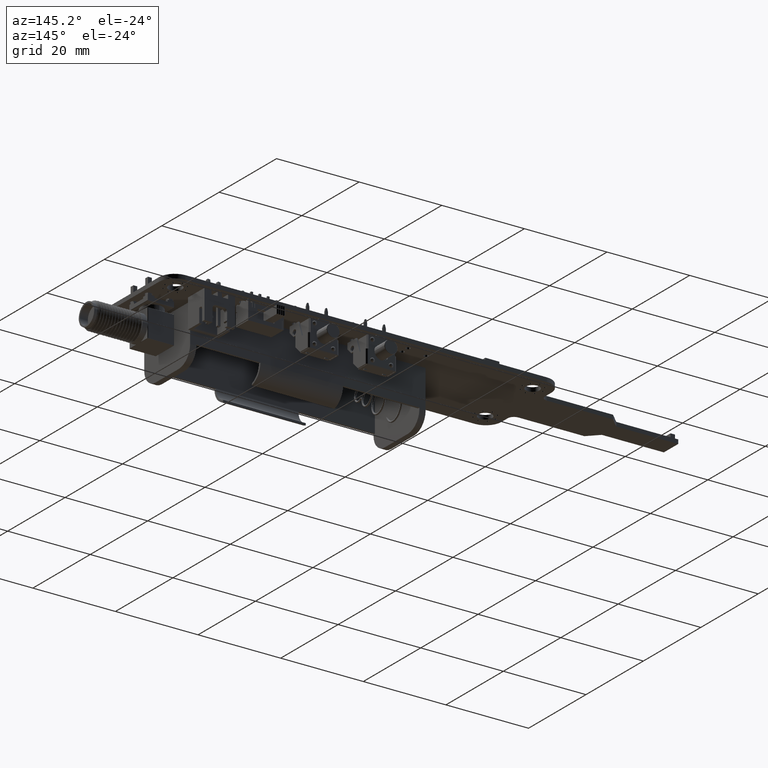
[diagram: clean part render]
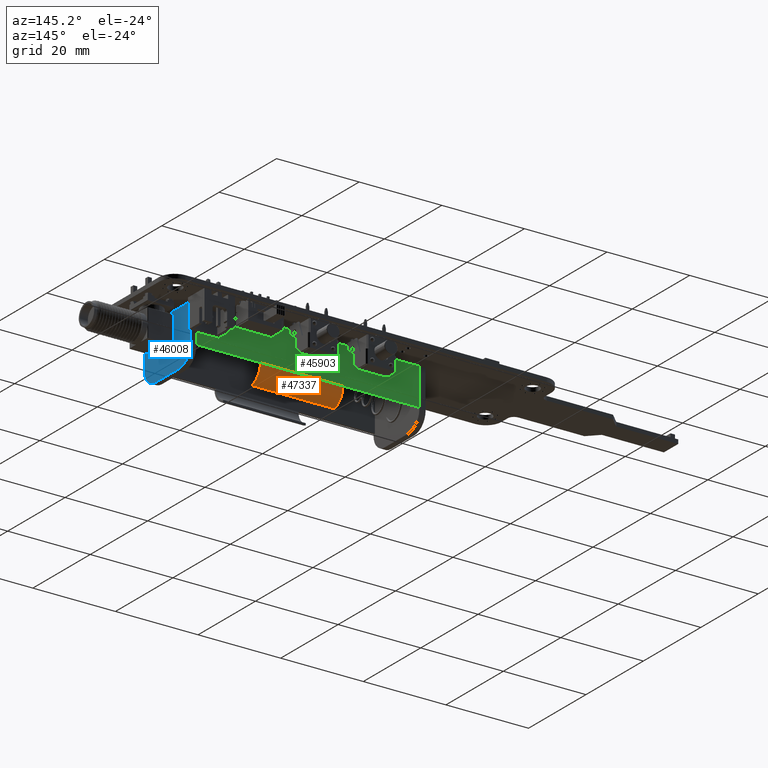
[diagram: same view with three faces highlighted in distinct colors, each labeled with its STEP entity id]
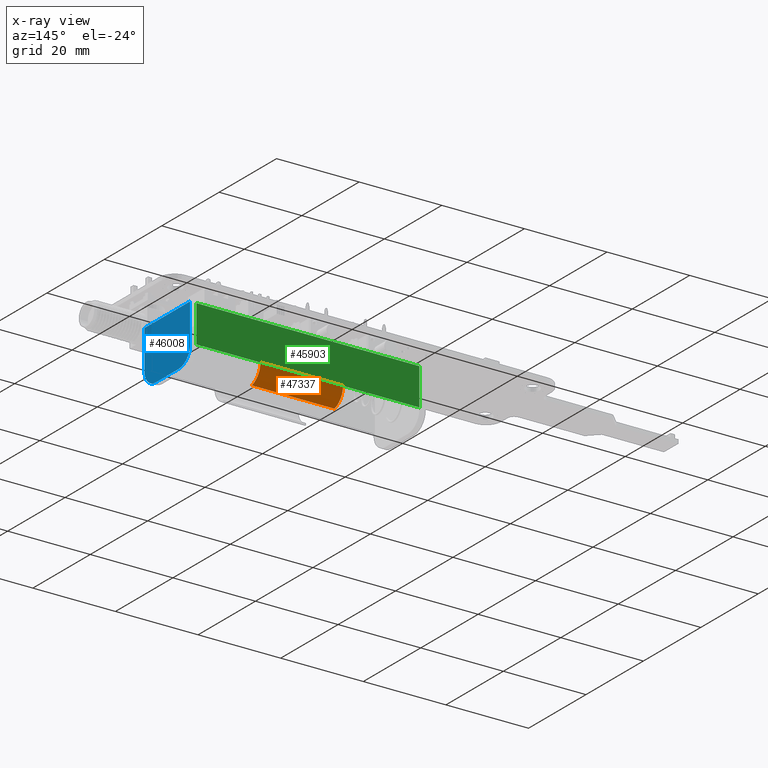
[diagram: x-ray of the same camera — body ghosted, the three highlighted faces saturated]
A machine part, auxiliary view with three faces highlighted in distinct colors.
The next image is the same camera in x-ray (body ghosted, the three faces saturated) — at least one of them is partly hidden behind the body in this view.
Their STEP definitions:

[orange] entity #47337 — the highlighted cylindrical surface (edge-blend (fillet) strip) has radius 4.0073 mm, axis along (-1, -0, 0).
#45004 = PLANE('',#45005);
#45005 = AXIS2_PLACEMENT_3D('',#45006,#45007,#45008);
#45006 = CARTESIAN_POINT('',(-5.,12.88057,40.));
#45007 = DIRECTION('',(0.,0.,1.));
#45008 = DIRECTION('',(1.,0.,-0.));
#45797 = VERTEX_POINT('',#45798);
#45798 = CARTESIAN_POINT('',(-5.,12.88057,40.));
#45814 = PLANE('',#45815);
#45815 = AXIS2_PLACEMENT_3D('',#45816,#45817,#45818);
#45816 = CARTESIAN_POINT('',(-5.,12.88057,20.));
#45817 = DIRECTION('',(1.,0.,0.));
#45818 = DIRECTION('',(0.,-1.,0.));
#45826 = EDGE_CURVE('',#45797,#45827,#45829,.T.);
#45827 = VERTEX_POINT('',#45828);
#45828 = CARTESIAN_POINT('',(-8.00734619479,9.,40.));
#45829 = SURFACE_CURVE('',#45830,(#45835,#45842),.PCURVE_S1.);
#45830 = CIRCLE('',#45831,4.00734619479);
#45831 = AXIS2_PLACEMENT_3D('',#45832,#45833,#45834);
#45832 = CARTESIAN_POINT('',(-4.,9.,40.));
#45833 = DIRECTION('',(0.,0.,1.));
#45834 = DIRECTION('',(1.,0.,-0.));
#45835 = PCURVE('',#45004,#45836);
#45836 = DEFINITIONAL_REPRESENTATION('',(#45837),#45841);
#45837 = CIRCLE('',#45838,4.00734619479);
#45838 = AXIS2_PLACEMENT_2D('',#45839,#45840);
#45839 = CARTESIAN_POINT('',(1.,-3.88057));
#45840 = DIRECTION('',(1.,0.));
#45841 = ( GEOMETRIC_REPRESENTATION_CONTEXT(2) 
PARAMETRIC_REPRESENTATION_CONTEXT() REPRESENTATION_CONTEXT('2D SPACE',''
  ) );
#45842 = PCURVE('',#45843,#45848);
#45843 = CYLINDRICAL_SURFACE('',#45844,4.00734619479);
#45844 = AXIS2_PLACEMENT_3D('',#45845,#45846,#45847);
#45845 = CARTESIAN_POINT('',(-4.,9.,20.));
#45846 = DIRECTION('',(-0.,-0.,-1.));
#45847 = DIRECTION('',(1.,0.,0.));
#45848 = DEFINITIONAL_REPRESENTATION('',(#45849),#45853);
#45849 = LINE('',#45850,#45851);
#45850 = CARTESIAN_POINT('',(6.28318530718,-20.));
#45851 = VECTOR('',#45852,1.);
#45852 = DIRECTION('',(-1.,0.));
#45853 = ( GEOMETRIC_REPRESENTATION_CONTEXT(2) 
PARAMETRIC_REPRESENTATION_CONTEXT() REPRESENTATION_CONTEXT('2D SPACE',''
  ) );
#45869 = PLANE('',#45870);
#45870 = AXIS2_PLACEMENT_3D('',#45871,#45872,#45873);
#45871 = CARTESIAN_POINT('',(-7.5,9.,20.));
#45872 = DIRECTION('',(0.,-1.,0.));
#45873 = DIRECTION('',(-1.,0.,0.));
#46104 = PLANE('',#46105);
#46105 = AXIS2_PLACEMENT_3D('',#46106,#46107,#46108);
#46106 = CARTESIAN_POINT('',(-5.,12.88057,20.));
#46107 = DIRECTION('',(0.,0.,1.));
#46108 = DIRECTION('',(1.,0.,-0.));
#47292 = EDGE_CURVE('',#47293,#45797,#47295,.T.);
#47293 = VERTEX_POINT('',#47294);
#47294 = CARTESIAN_POINT('',(-5.,12.88057,20.));
#47295 = SURFACE_CURVE('',#47296,(#47300,#47307),.PCURVE_S1.);
#47296 = LINE('',#47297,#47298);
#47297 = CARTESIAN_POINT('',(-5.,12.88057,20.));
#47298 = VECTOR('',#47299,1.);
#47299 = DIRECTION('',(0.,0.,1.));
#47300 = PCURVE('',#45814,#47301);
#47301 = DEFINITIONAL_REPRESENTATION('',(#47302),#47306);
#47302 = LINE('',#47303,#47304);
#47303 = CARTESIAN_POINT('',(0.,0.));
#47304 = VECTOR('',#47305,1.);
#47305 = DIRECTION('',(0.,-1.));
#47306 = ( GEOMETRIC_REPRESENTATION_CONTEXT(2) 
PARAMETRIC_REPRESENTATION_CONTEXT() REPRESENTATION_CONTEXT('2D SPACE',''
  ) );
#47307 = PCURVE('',#45843,#47308);
#47308 = DEFINITIONAL_REPRESENTATION('',(#47309),#47313);
#47309 = LINE('',#47310,#47311);
#47310 = CARTESIAN_POINT('',(4.46018202189,0.));
#47311 = VECTOR('',#47312,1.);
#47312 = DIRECTION('',(-0.,-1.));
#47313 = ( GEOMETRIC_REPRESENTATION_CONTEXT(2) 
PARAMETRIC_REPRESENTATION_CONTEXT() REPRESENTATION_CONTEXT('2D SPACE',''
  ) );
#47337 = ADVANCED_FACE('',(#47338),#45843,.T.);
#47338 = FACE_BOUND('',#47339,.T.);
#47339 = EDGE_LOOP('',(#47340,#47364,#47385,#47386));
#47340 = ORIENTED_EDGE('',*,*,#47341,.T.);
#47341 = EDGE_CURVE('',#47293,#47342,#47344,.T.);
#47342 = VERTEX_POINT('',#47343);
#47343 = CARTESIAN_POINT('',(-8.00734619479,9.,20.));
#47344 = SURFACE_CURVE('',#47345,(#47350,#47357),.PCURVE_S1.);
#47345 = CIRCLE('',#47346,4.00734619479);
#47346 = AXIS2_PLACEMENT_3D('',#47347,#47348,#47349);
#47347 = CARTESIAN_POINT('',(-4.,9.,20.));
#47348 = DIRECTION('',(0.,0.,1.));
#47349 = DIRECTION('',(1.,0.,-0.));
#47350 = PCURVE('',#45843,#47351);
#47351 = DEFINITIONAL_REPRESENTATION('',(#47352),#47356);
#47352 = LINE('',#47353,#47354);
#47353 = CARTESIAN_POINT('',(6.28318530718,0.));
#47354 = VECTOR('',#47355,1.);
#47355 = DIRECTION('',(-1.,0.));
#47356 = ( GEOMETRIC_REPRESENTATION_CONTEXT(2) 
PARAMETRIC_REPRESENTATION_CONTEXT() REPRESENTATION_CONTEXT('2D SPACE',''
  ) );
#47357 = PCURVE('',#46104,#47358);
#47358 = DEFINITIONAL_REPRESENTATION('',(#47359),#47363);
#47359 = CIRCLE('',#47360,4.00734619479);
#47360 = AXIS2_PLACEMENT_2D('',#47361,#47362);
#47361 = CARTESIAN_POINT('',(1.,-3.88057));
#47362 = DIRECTION('',(1.,0.));
#47363 = ( GEOMETRIC_REPRESENTATION_CONTEXT(2) 
PARAMETRIC_REPRESENTATION_CONTEXT() REPRESENTATION_CONTEXT('2D SPACE',''
  ) );
#47364 = ORIENTED_EDGE('',*,*,#47365,.T.);
#47365 = EDGE_CURVE('',#47342,#45827,#47366,.T.);
#47366 = SURFACE_CURVE('',#47367,(#47371,#47378),.PCURVE_S1.);
#47367 = LINE('',#47368,#47369);
#47368 = CARTESIAN_POINT('',(-8.00734619479,9.,20.));
#47369 = VECTOR('',#47370,1.);
#47370 = DIRECTION('',(0.,0.,1.));
#47371 = PCURVE('',#45843,#47372);
#47372 = DEFINITIONAL_REPRESENTATION('',(#47373),#47377);
#47373 = LINE('',#47374,#47375);
#47374 = CARTESIAN_POINT('',(3.14159265359,0.));
#47375 = VECTOR('',#47376,1.);
#47376 = DIRECTION('',(-0.,-1.));
#47377 = ( GEOMETRIC_REPRESENTATION_CONTEXT(2) 
PARAMETRIC_REPRESENTATION_CONTEXT() REPRESENTATION_CONTEXT('2D SPACE',''
  ) );
#47378 = PCURVE('',#45869,#47379);
#47379 = DEFINITIONAL_REPRESENTATION('',(#47380),#47384);
#47380 = LINE('',#47381,#47382);
#47381 = CARTESIAN_POINT('',(0.50734619479,0.));
#47382 = VECTOR('',#47383,1.);
#47383 = DIRECTION('',(0.,-1.));
#47384 = ( GEOMETRIC_REPRESENTATION_CONTEXT(2) 
PARAMETRIC_REPRESENTATION_CONTEXT() REPRESENTATION_CONTEXT('2D SPACE',''
  ) );
#47385 = ORIENTED_EDGE('',*,*,#45826,.F.);
#47386 = ORIENTED_EDGE('',*,*,#47292,.F.);

[blue] entity #46008 — the highlighted planar face has unit normal (-1, -0, 0).
#44736 = PLANE('',#44737);
#44737 = AXIS2_PLACEMENT_3D('',#44738,#44739,#44740);
#44738 = CARTESIAN_POINT('',(-8.,9.251012555929,55.5));
#44739 = DIRECTION('',(1.,0.,0.));
#44740 = DIRECTION('',(0.,-1.,0.));
#44769 = CYLINDRICAL_SURFACE('',#44770,4.);
#44770 = AXIS2_PLACEMENT_3D('',#44771,#44772,#44773);
#44771 = CARTESIAN_POINT('',(-4.,9.251012555929,55.5));
#44772 = DIRECTION('',(-0.,-0.,-1.));
#44773 = DIRECTION('',(1.,0.,0.));
#44797 = PLANE('',#44798);
#44798 = AXIS2_PLACEMENT_3D('',#44799,#44800,#44801);
#44799 = CARTESIAN_POINT('',(4.,13.251012555929,55.5));
#44800 = DIRECTION('',(0.,-1.,0.));
#44801 = DIRECTION('',(-1.,0.,0.));
#44830 = CYLINDRICAL_SURFACE('',#44831,4.);
#44831 = AXIS2_PLACEMENT_3D('',#44832,#44833,#44834);
#44832 = CARTESIAN_POINT('',(4.,9.251012555929,55.5));
#44833 = DIRECTION('',(-0.,-0.,-1.));
#44834 = DIRECTION('',(1.,0.,0.));
#44858 = PLANE('',#44859);
#44859 = AXIS2_PLACEMENT_3D('',#44860,#44861,#44862);
#44860 = CARTESIAN_POINT('',(8.,0.,55.5));
#44861 = DIRECTION('',(-1.,0.,0.));
#44862 = DIRECTION('',(0.,1.,0.));
#45068 = VERTEX_POINT('',#45069);
#45069 = CARTESIAN_POINT('',(-8.,9.251012555929,57.));
#45090 = EDGE_CURVE('',#45068,#45091,#45093,.T.);
#45091 = VERTEX_POINT('',#45092);
#45092 = CARTESIAN_POINT('',(-8.,0.,57.));
#45093 = SURFACE_CURVE('',#45094,(#45098,#45105),.PCURVE_S1.);
#45094 = LINE('',#45095,#45096);
#45095 = CARTESIAN_POINT('',(-8.,9.251012555929,57.));
#45096 = VECTOR('',#45097,1.);
#45097 = DIRECTION('',(0.,-1.,0.));
#45098 = PCURVE('',#44736,#45099);
#45099 = DEFINITIONAL_REPRESENTATION('',(#45100),#45104);
#45100 = LINE('',#45101,#45102);
#45101 = CARTESIAN_POINT('',(0.,-1.5));
#45102 = VECTOR('',#45103,1.);
#45103 = DIRECTION('',(1.,0.));
#45104 = ( GEOMETRIC_REPRESENTATION_CONTEXT(2) 
PARAMETRIC_REPRESENTATION_CONTEXT() REPRESENTATION_CONTEXT('2D SPACE',''
  ) );
#45105 = PCURVE('',#45106,#45111);
#45106 = PLANE('',#45107);
#45107 = AXIS2_PLACEMENT_3D('',#45108,#45109,#45110);
#45108 = CARTESIAN_POINT('',(-8.,0.,57.));
#45109 = DIRECTION('',(0.,0.,-1.));
#45110 = DIRECTION('',(-1.,0.,0.));
#45111 = DEFINITIONAL_REPRESENTATION('',(#45112),#45116);
#45112 = LINE('',#45113,#45114);
#45113 = CARTESIAN_POINT('',(0.,9.251012555929));
#45114 = VECTOR('',#45115,1.);
#45115 = DIRECTION('',(0.,-1.));
#45116 = ( GEOMETRIC_REPRESENTATION_CONTEXT(2) 
PARAMETRIC_REPRESENTATION_CONTEXT() REPRESENTATION_CONTEXT('2D SPACE',''
  ) );
#45134 = PLANE('',#45135);
#45135 = AXIS2_PLACEMENT_3D('',#45136,#45137,#45138);
#45136 = CARTESIAN_POINT('',(-8.,0.,55.5));
#45137 = DIRECTION('',(0.,1.,0.));
#45138 = DIRECTION('',(1.,0.,0.));
#45283 = EDGE_CURVE('',#45284,#45068,#45286,.T.);
#45284 = VERTEX_POINT('',#45285);
#45285 = CARTESIAN_POINT('',(-4.,13.251012555929,57.));
#45286 = SURFACE_CURVE('',#45287,(#45292,#45299),.PCURVE_S1.);
#45287 = CIRCLE('',#45288,4.);
#45288 = AXIS2_PLACEMENT_3D('',#45289,#45290,#45291);
#45289 = CARTESIAN_POINT('',(-4.,9.251012555929,57.));
#45290 = DIRECTION('',(0.,0.,1.));
#45291 = DIRECTION('',(1.,0.,-0.));
#45292 = PCURVE('',#44769,#45293);
#45293 = DEFINITIONAL_REPRESENTATION('',(#45294),#45298);
#45294 = LINE('',#45295,#45296);
#45295 = CARTESIAN_POINT('',(6.28318530718,-1.5));
#45296 = VECTOR('',#45297,1.);
#45297 = DIRECTION('',(-1.,0.));
#45298 = ( GEOMETRIC_REPRESENTATION_CONTEXT(2) 
PARAMETRIC_REPRESENTATION_CONTEXT() REPRESENTATION_CONTEXT('2D SPACE',''
  ) );
#45299 = PCURVE('',#45106,#45300);
#45300 = DEFINITIONAL_REPRESENTATION('',(#45301),#45309);
#45301 = ( BOUNDED_CURVE() B_SPLINE_CURVE(2,(#45302,#45303,#45304,#45305
    ,#45306,#45307,#45308),.UNSPECIFIED.,.F.,.F.) 
B_SPLINE_CURVE_WITH_KNOTS((1,2,2,2,2,1),(-2.094395102393,0.,
    2.094395102393,4.188790204786,6.28318530718,8.377580409573),
.UNSPECIFIED.) CURVE() GEOMETRIC_REPRESENTATION_ITEM() 
RATIONAL_B_SPLINE_CURVE((1.,0.5,1.,0.5,1.,0.5,1.)) REPRESENTATION_ITEM(
  '') );
#45302 = CARTESIAN_POINT('',(-8.,9.251012555929));
#45303 = CARTESIAN_POINT('',(-8.,16.179215786205));
#45304 = CARTESIAN_POINT('',(-2.,12.715114171067));
#45305 = CARTESIAN_POINT('',(4.,9.251012555929));
#45306 = CARTESIAN_POINT('',(-2.,5.786910940791));
#45307 = CARTESIAN_POINT('',(-8.,2.322809325653));
#45308 = CARTESIAN_POINT('',(-8.,9.251012555929));
#45309 = ( GEOMETRIC_REPRESENTATION_CONTEXT(2) 
PARAMETRIC_REPRESENTATION_CONTEXT() REPRESENTATION_CONTEXT('2D SPACE',''
  ) );
#45385 = VERTEX_POINT('',#45386);
#45386 = CARTESIAN_POINT('',(4.,13.251012555929,57.));
#45407 = EDGE_CURVE('',#45385,#45284,#45408,.T.);
#45408 = SURFACE_CURVE('',#45409,(#45413,#45420),.PCURVE_S1.);
#45409 = LINE('',#45410,#45411);
#45410 = CARTESIAN_POINT('',(4.,13.251012555929,57.));
#45411 = VECTOR('',#45412,1.);
#45412 = DIRECTION('',(-1.,0.,0.));
#45413 = PCURVE('',#44797,#45414);
#45414 = DEFINITIONAL_REPRESENTATION('',(#45415),#45419);
#45415 = LINE('',#45416,#45417);
#45416 = CARTESIAN_POINT('',(0.,-1.5));
#45417 = VECTOR('',#45418,1.);
#45418 = DIRECTION('',(1.,0.));
#45419 = ( GEOMETRIC_REPRESENTATION_CONTEXT(2) 
PARAMETRIC_REPRESENTATION_CONTEXT() REPRESENTATION_CONTEXT('2D SPACE',''
  ) );
#45420 = PCURVE('',#45106,#45421);
#45421 = DEFINITIONAL_REPRESENTATION('',(#45422),#45426);
#45422 = LINE('',#45423,#45424);
#45423 = CARTESIAN_POINT('',(-12.,13.251012555929));
#45424 = VECTOR('',#45425,1.);
#45425 = DIRECTION('',(1.,0.));
#45426 = ( GEOMETRIC_REPRESENTATION_CONTEXT(2) 
PARAMETRIC_REPRESENTATION_CONTEXT() REPRESENTATION_CONTEXT('2D SPACE',''
  ) );
#45535 = EDGE_CURVE('',#45536,#45385,#45538,.T.);
#45536 = VERTEX_POINT('',#45537);
#45537 = CARTESIAN_POINT('',(8.,9.251012555929,57.));
#45538 = SURFACE_CURVE('',#45539,(#45544,#45551),.PCURVE_S1.);
#45539 = CIRCLE('',#45540,4.);
#45540 = AXIS2_PLACEMENT_3D('',#45541,#45542,#45543);
#45541 = CARTESIAN_POINT('',(4.,9.251012555929,57.));
#45542 = DIRECTION('',(0.,0.,1.));
#45543 = DIRECTION('',(1.,0.,-0.));
#45544 = PCURVE('',#44830,#45545);
#45545 = DEFINITIONAL_REPRESENTATION('',(#45546),#45550);
#45546 = LINE('',#45547,#45548);
#45547 = CARTESIAN_POINT('',(6.28318530718,-1.5));
#45548 = VECTOR('',#45549,1.);
#45549 = DIRECTION('',(-1.,0.));
#45550 = ( GEOMETRIC_REPRESENTATION_CONTEXT(2) 
PARAMETRIC_REPRESENTATION_CONTEXT() REPRESENTATION_CONTEXT('2D SPACE',''
  ) );
#45551 = PCURVE('',#45106,#45552);
#45552 = DEFINITIONAL_REPRESENTATION('',(#45553),#45561);
#45553 = ( BOUNDED_CURVE() B_SPLINE_CURVE(2,(#45554,#45555,#45556,#45557
    ,#45558,#45559,#45560),.UNSPECIFIED.,.F.,.F.) 
B_SPLINE_CURVE_WITH_KNOTS((1,2,2,2,2,1),(-2.094395102393,0.,
    2.094395102393,4.188790204786,6.28318530718,8.377580409573),
.UNSPECIFIED.) CURVE() GEOMETRIC_REPRESENTATION_ITEM() 
RATIONAL_B_SPLINE_CURVE((1.,0.5,1.,0.5,1.,0.5,1.)) REPRESENTATION_ITEM(
  '') );
#45554 = CARTESIAN_POINT('',(-16.,9.251012555929));
#45555 = CARTESIAN_POINT('',(-16.,16.179215786205));
#45556 = CARTESIAN_POINT('',(-10.,12.715114171067));
#45557 = CARTESIAN_POINT('',(-4.,9.251012555929));
#45558 = CARTESIAN_POINT('',(-10.,5.786910940791));
#45559 = CARTESIAN_POINT('',(-16.,2.322809325653));
#45560 = CARTESIAN_POINT('',(-16.,9.251012555929));
#45561 = ( GEOMETRIC_REPRESENTATION_CONTEXT(2) 
PARAMETRIC_REPRESENTATION_CONTEXT() REPRESENTATION_CONTEXT('2D SPACE',''
  ) );
#45727 = VERTEX_POINT('',#45728);
#45728 = CARTESIAN_POINT('',(8.,0.,57.));
#45749 = EDGE_CURVE('',#45727,#45536,#45750,.T.);
#45750 = SURFACE_CURVE('',#45751,(#45755,#45762),.PCURVE_S1.);
#45751 = LINE('',#45752,#45753);
#45752 = CARTESIAN_POINT('',(8.,0.,57.));
#45753 = VECTOR('',#45754,1.);
#45754 = DIRECTION('',(0.,1.,0.));
#45755 = PCURVE('',#44858,#45756);
#45756 = DEFINITIONAL_REPRESENTATION('',(#45757),#45761);
#45757 = LINE('',#45758,#45759);
#45758 = CARTESIAN_POINT('',(0.,-1.5));
#45759 = VECTOR('',#45760,1.);
#45760 = DIRECTION('',(1.,0.));
#45761 = ( GEOMETRIC_REPRESENTATION_CONTEXT(2) 
PARAMETRIC_REPRESENTATION_CONTEXT() REPRESENTATION_CONTEXT('2D SPACE',''
  ) );
#45762 = PCURVE('',#45106,#45763);
#45763 = DEFINITIONAL_REPRESENTATION('',(#45764),#45768);
#45764 = LINE('',#45765,#45766);
#45765 = CARTESIAN_POINT('',(-16.,0.));
#45766 = VECTOR('',#45767,1.);
#45767 = DIRECTION('',(0.,1.));
#45768 = ( GEOMETRIC_REPRESENTATION_CONTEXT(2) 
PARAMETRIC_REPRESENTATION_CONTEXT() REPRESENTATION_CONTEXT('2D SPACE',''
  ) );
#46008 = ADVANCED_FACE('',(#46009),#45106,.F.);
#46009 = FACE_BOUND('',#46010,.T.);
#46010 = EDGE_LOOP('',(#46011,#46032,#46033,#46034,#46035,#46036));
#46011 = ORIENTED_EDGE('',*,*,#46012,.T.);
#46012 = EDGE_CURVE('',#45091,#45727,#46013,.T.);
#46013 = SURFACE_CURVE('',#46014,(#46018,#46025),.PCURVE_S1.);
#46014 = LINE('',#46015,#46016);
#46015 = CARTESIAN_POINT('',(-8.,0.,57.));
#46016 = VECTOR('',#46017,1.);
#46017 = DIRECTION('',(1.,0.,0.));
#46018 = PCURVE('',#45106,#46019);
#46019 = DEFINITIONAL_REPRESENTATION('',(#46020),#46024);
#46020 = LINE('',#46021,#46022);
#46021 = CARTESIAN_POINT('',(0.,0.));
#46022 = VECTOR('',#46023,1.);
#46023 = DIRECTION('',(-1.,0.));
#46024 = ( GEOMETRIC_REPRESENTATION_CONTEXT(2) 
PARAMETRIC_REPRESENTATION_CONTEXT() REPRESENTATION_CONTEXT('2D SPACE',''
  ) );
#46025 = PCURVE('',#45134,#46026);
#46026 = DEFINITIONAL_REPRESENTATION('',(#46027),#46031);
#46027 = LINE('',#46028,#46029);
#46028 = CARTESIAN_POINT('',(0.,-1.5));
#46029 = VECTOR('',#46030,1.);
#46030 = DIRECTION('',(1.,0.));
#46031 = ( GEOMETRIC_REPRESENTATION_CONTEXT(2) 
PARAMETRIC_REPRESENTATION_CONTEXT() REPRESENTATION_CONTEXT('2D SPACE',''
  ) );
#46032 = ORIENTED_EDGE('',*,*,#45749,.T.);
#46033 = ORIENTED_EDGE('',*,*,#45535,.T.);
#46034 = ORIENTED_EDGE('',*,*,#45407,.T.);
#46035 = ORIENTED_EDGE('',*,*,#45283,.T.);
#46036 = ORIENTED_EDGE('',*,*,#45090,.T.);

[green] entity #45903 — the highlighted planar face has unit normal (-0, 1, -0).
#44691 = VERTEX_POINT('',#44692);
#44692 = CARTESIAN_POINT('',(-8.,9.,55.5));
#44708 = PLANE('',#44709);
#44709 = AXIS2_PLACEMENT_3D('',#44710,#44711,#44712);
#44710 = CARTESIAN_POINT('',(-8.,9.,1.5));
#44711 = DIRECTION('',(0.,1.,0.));
#44712 = DIRECTION('',(1.,0.,0.));
#44736 = PLANE('',#44737);
#44737 = AXIS2_PLACEMENT_3D('',#44738,#44739,#44740);
#44738 = CARTESIAN_POINT('',(-8.,9.251012555929,55.5));
#44739 = DIRECTION('',(1.,0.,0.));
#44740 = DIRECTION('',(0.,-1.,0.));
#44989 = VERTEX_POINT('',#44990);
#44990 = CARTESIAN_POINT('',(-8.,9.,40.));
#45016 = EDGE_CURVE('',#44989,#44691,#45017,.T.);
#45017 = SURFACE_CURVE('',#45018,(#45022,#45029),.PCURVE_S1.);
#45018 = LINE('',#45019,#45020);
#45019 = CARTESIAN_POINT('',(-8.,9.,1.5));
#45020 = VECTOR('',#45021,1.);
#45021 = DIRECTION('',(0.,0.,1.));
#45022 = PCURVE('',#44708,#45023);
#45023 = DEFINITIONAL_REPRESENTATION('',(#45024),#45028);
#45024 = LINE('',#45025,#45026);
#45025 = CARTESIAN_POINT('',(0.,0.));
#45026 = VECTOR('',#45027,1.);
#45027 = DIRECTION('',(0.,-1.));
#45028 = ( GEOMETRIC_REPRESENTATION_CONTEXT(2) 
PARAMETRIC_REPRESENTATION_CONTEXT() REPRESENTATION_CONTEXT('2D SPACE',''
  ) );
#45029 = PCURVE('',#45030,#45035);
#45030 = PLANE('',#45031);
#45031 = AXIS2_PLACEMENT_3D('',#45032,#45033,#45034);
#45032 = CARTESIAN_POINT('',(-8.,0.,1.5));
#45033 = DIRECTION('',(-1.,0.,0.));
#45034 = DIRECTION('',(0.,1.,0.));
#45035 = DEFINITIONAL_REPRESENTATION('',(#45036),#45040);
#45036 = LINE('',#45037,#45038);
#45037 = CARTESIAN_POINT('',(9.,0.));
#45038 = VECTOR('',#45039,1.);
#45039 = DIRECTION('',(0.,-1.));
#45040 = ( GEOMETRIC_REPRESENTATION_CONTEXT(2) 
PARAMETRIC_REPRESENTATION_CONTEXT() REPRESENTATION_CONTEXT('2D SPACE',''
  ) );
#45119 = VERTEX_POINT('',#45120);
#45120 = CARTESIAN_POINT('',(-8.,0.,55.5));
#45146 = EDGE_CURVE('',#44691,#45119,#45147,.T.);
#45147 = SURFACE_CURVE('',#45148,(#45152,#45159),.PCURVE_S1.);
#45148 = LINE('',#45149,#45150);
#45149 = CARTESIAN_POINT('',(-8.,9.251012555929,55.5));
#45150 = VECTOR('',#45151,1.);
#45151 = DIRECTION('',(0.,-1.,0.));
#45152 = PCURVE('',#44736,#45153);
#45153 = DEFINITIONAL_REPRESENTATION('',(#45154),#45158);
#45154 = LINE('',#45155,#45156);
#45155 = CARTESIAN_POINT('',(0.,0.));
#45156 = VECTOR('',#45157,1.);
#45157 = DIRECTION('',(1.,0.));
#45158 = ( GEOMETRIC_REPRESENTATION_CONTEXT(2) 
PARAMETRIC_REPRESENTATION_CONTEXT() REPRESENTATION_CONTEXT('2D SPACE',''
  ) );
#45159 = PCURVE('',#45030,#45160);
#45160 = DEFINITIONAL_REPRESENTATION('',(#45161),#45165);
#45161 = LINE('',#45162,#45163);
#45162 = CARTESIAN_POINT('',(9.251012555929,-54.));
#45163 = VECTOR('',#45164,1.);
#45164 = DIRECTION('',(-1.,0.));
#45165 = ( GEOMETRIC_REPRESENTATION_CONTEXT(2) 
PARAMETRIC_REPRESENTATION_CONTEXT() REPRESENTATION_CONTEXT('2D SPACE',''
  ) );
#45189 = PLANE('',#45190);
#45190 = AXIS2_PLACEMENT_3D('',#45191,#45192,#45193);
#45191 = CARTESIAN_POINT('',(-8.,9.,1.5));
#45192 = DIRECTION('',(0.,1.,0.));
#45193 = DIRECTION('',(1.,0.,0.));
#45869 = PLANE('',#45870);
#45870 = AXIS2_PLACEMENT_3D('',#45871,#45872,#45873);
#45871 = CARTESIAN_POINT('',(-7.5,9.,20.));
#45872 = DIRECTION('',(0.,-1.,0.));
#45873 = DIRECTION('',(-1.,0.,0.));
#45903 = ADVANCED_FACE('',(#45904),#45030,.T.);
#45904 = FACE_BOUND('',#45905,.T.);
#45905 = EDGE_LOOP('',(#45906,#45934,#45935,#45936,#45959,#45982));
#45906 = ORIENTED_EDGE('',*,*,#45907,.T.);
#45907 = EDGE_CURVE('',#45908,#45119,#45910,.T.);
#45908 = VERTEX_POINT('',#45909);
#45909 = CARTESIAN_POINT('',(-8.,0.,1.5));
#45910 = SURFACE_CURVE('',#45911,(#45915,#45922),.PCURVE_S1.);
#45911 = LINE('',#45912,#45913);
#45912 = CARTESIAN_POINT('',(-8.,0.,1.5));
#45913 = VECTOR('',#45914,1.);
#45914 = DIRECTION('',(0.,0.,1.));
#45915 = PCURVE('',#45030,#45916);
#45916 = DEFINITIONAL_REPRESENTATION('',(#45917),#45921);
#45917 = LINE('',#45918,#45919);
#45918 = CARTESIAN_POINT('',(0.,0.));
#45919 = VECTOR('',#45920,1.);
#45920 = DIRECTION('',(0.,-1.));
#45921 = ( GEOMETRIC_REPRESENTATION_CONTEXT(2) 
PARAMETRIC_REPRESENTATION_CONTEXT() REPRESENTATION_CONTEXT('2D SPACE',''
  ) );
#45922 = PCURVE('',#45923,#45928);
#45923 = PLANE('',#45924);
#45924 = AXIS2_PLACEMENT_3D('',#45925,#45926,#45927);
#45925 = CARTESIAN_POINT('',(8.,0.,1.5));
#45926 = DIRECTION('',(0.,-1.,0.));
#45927 = DIRECTION('',(-1.,0.,0.));
#45928 = DEFINITIONAL_REPRESENTATION('',(#45929),#45933);
#45929 = LINE('',#45930,#45931);
#45930 = CARTESIAN_POINT('',(16.,0.));
#45931 = VECTOR('',#45932,1.);
#45932 = DIRECTION('',(0.,-1.));
#45933 = ( GEOMETRIC_REPRESENTATION_CONTEXT(2) 
PARAMETRIC_REPRESENTATION_CONTEXT() REPRESENTATION_CONTEXT('2D SPACE',''
  ) );
#45934 = ORIENTED_EDGE('',*,*,#45146,.F.);
#45935 = ORIENTED_EDGE('',*,*,#45016,.F.);
#45936 = ORIENTED_EDGE('',*,*,#45937,.F.);
#45937 = EDGE_CURVE('',#45938,#44989,#45940,.T.);
#45938 = VERTEX_POINT('',#45939);
#45939 = CARTESIAN_POINT('',(-8.,9.,20.));
#45940 = SURFACE_CURVE('',#45941,(#45945,#45952),.PCURVE_S1.);
#45941 = LINE('',#45942,#45943);
#45942 = CARTESIAN_POINT('',(-8.,9.,1.5));
#45943 = VECTOR('',#45944,1.);
#45944 = DIRECTION('',(0.,0.,1.));
#45945 = PCURVE('',#45030,#45946);
#45946 = DEFINITIONAL_REPRESENTATION('',(#45947),#45951);
#45947 = LINE('',#45948,#45949);
#45948 = CARTESIAN_POINT('',(9.,0.));
#45949 = VECTOR('',#45950,1.);
#45950 = DIRECTION('',(0.,-1.));
#45951 = ( GEOMETRIC_REPRESENTATION_CONTEXT(2) 
PARAMETRIC_REPRESENTATION_CONTEXT() REPRESENTATION_CONTEXT('2D SPACE',''
  ) );
#45952 = PCURVE('',#45869,#45953);
#45953 = DEFINITIONAL_REPRESENTATION('',(#45954),#45958);
#45954 = LINE('',#45955,#45956);
#45955 = CARTESIAN_POINT('',(0.5,18.5));
#45956 = VECTOR('',#45957,1.);
#45957 = DIRECTION('',(0.,-1.));
#45958 = ( GEOMETRIC_REPRESENTATION_CONTEXT(2) 
PARAMETRIC_REPRESENTATION_CONTEXT() REPRESENTATION_CONTEXT('2D SPACE',''
  ) );
#45959 = ORIENTED_EDGE('',*,*,#45960,.F.);
#45960 = EDGE_CURVE('',#45961,#45938,#45963,.T.);
#45961 = VERTEX_POINT('',#45962);
#45962 = CARTESIAN_POINT('',(-8.,9.,1.5));
#45963 = SURFACE_CURVE('',#45964,(#45968,#45975),.PCURVE_S1.);
#45964 = LINE('',#45965,#45966);
#45965 = CARTESIAN_POINT('',(-8.,9.,1.5));
#45966 = VECTOR('',#45967,1.);
#45967 = DIRECTION('',(0.,0.,1.));
#45968 = PCURVE('',#45030,#45969);
#45969 = DEFINITIONAL_REPRESENTATION('',(#45970),#45974);
#45970 = LINE('',#45971,#45972);
#45971 = CARTESIAN_POINT('',(9.,0.));
#45972 = VECTOR('',#45973,1.);
#45973 = DIRECTION('',(0.,-1.));
#45974 = ( GEOMETRIC_REPRESENTATION_CONTEXT(2) 
PARAMETRIC_REPRESENTATION_CONTEXT() REPRESENTATION_CONTEXT('2D SPACE',''
  ) );
#45975 = PCURVE('',#45189,#45976);
#45976 = DEFINITIONAL_REPRESENTATION('',(#45977),#45981);
#45977 = LINE('',#45978,#45979);
#45978 = CARTESIAN_POINT('',(0.,0.));
#45979 = VECTOR('',#45980,1.);
#45980 = DIRECTION('',(0.,-1.));
#45981 = ( GEOMETRIC_REPRESENTATION_CONTEXT(2) 
PARAMETRIC_REPRESENTATION_CONTEXT() REPRESENTATION_CONTEXT('2D SPACE',''
  ) );
#45982 = ORIENTED_EDGE('',*,*,#45983,.F.);
#45983 = EDGE_CURVE('',#45908,#45961,#45984,.T.);
#45984 = SURFACE_CURVE('',#45985,(#45989,#45996),.PCURVE_S1.);
#45985 = LINE('',#45986,#45987);
#45986 = CARTESIAN_POINT('',(-8.,0.,1.5));
#45987 = VECTOR('',#45988,1.);
#45988 = DIRECTION('',(0.,1.,0.));
#45989 = PCURVE('',#45030,#45990);
#45990 = DEFINITIONAL_REPRESENTATION('',(#45991),#45995);
#45991 = LINE('',#45992,#45993);
#45992 = CARTESIAN_POINT('',(0.,0.));
#45993 = VECTOR('',#45994,1.);
#45994 = DIRECTION('',(1.,0.));
#45995 = ( GEOMETRIC_REPRESENTATION_CONTEXT(2) 
PARAMETRIC_REPRESENTATION_CONTEXT() REPRESENTATION_CONTEXT('2D SPACE',''
  ) );
#45996 = PCURVE('',#45997,#46002);
#45997 = PLANE('',#45998);
#45998 = AXIS2_PLACEMENT_3D('',#45999,#46000,#46001);
#45999 = CARTESIAN_POINT('',(-8.,9.251012555929,0.));
#46000 = DIRECTION('',(1.,0.,0.));
#46001 = DIRECTION('',(0.,-1.,0.));
#46002 = DEFINITIONAL_REPRESENTATION('',(#46003),#46007);
#46003 = LINE('',#46004,#46005);
#46004 = CARTESIAN_POINT('',(9.251012555929,-1.5));
#46005 = VECTOR('',#46006,1.);
#46006 = DIRECTION('',(-1.,0.));
#46007 = ( GEOMETRIC_REPRESENTATION_CONTEXT(2) 
PARAMETRIC_REPRESENTATION_CONTEXT() REPRESENTATION_CONTEXT('2D SPACE',''
  ) );